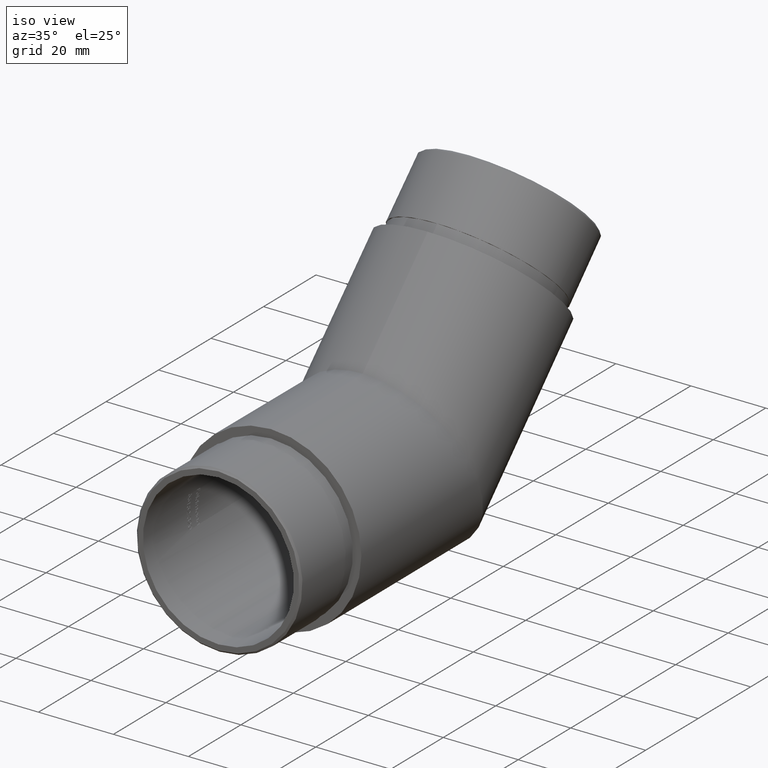
[diagram: clean part render]
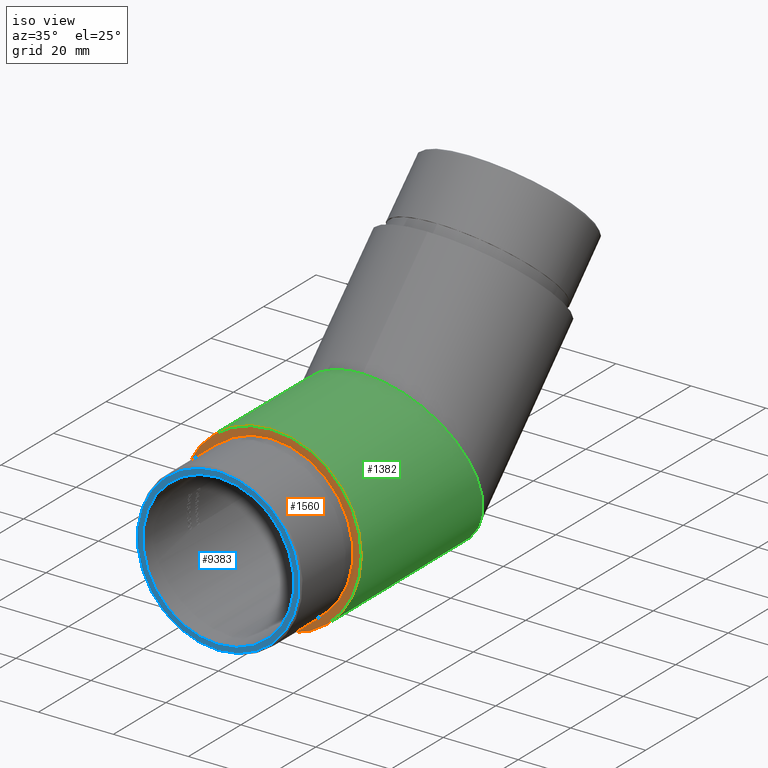
[diagram: same view with three faces highlighted in distinct colors, each labeled with its STEP entity id]
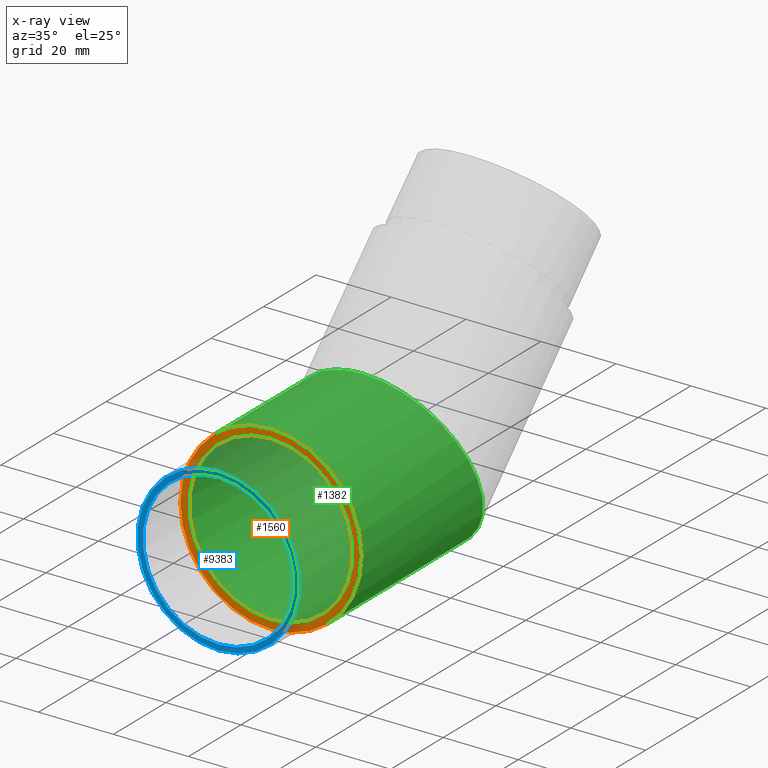
[diagram: x-ray of the same camera — body ghosted, the three highlighted faces saturated]
A machine part, iso view with three faces highlighted in distinct colors.
The next image is the same camera in x-ray (body ghosted, the three faces saturated) — at least one of them is partly hidden behind the body in this view.
Their STEP definitions:

[orange] entity #1560 — the highlighted planar face has unit normal (0, 1, 0).
#5 = CIRCLE ( 'NONE', #11575, 21.89999999999999900 ) ;
#188 = CARTESIAN_POINT ( 'NONE',  ( 0.0000000000000000000, 0.0000000000000000000, 24.15000000000000600 ) ) ;
#397 = DIRECTION ( 'NONE',  ( -0.0000000000000000000, -1.000000000000000000, -0.0000000000000000000 ) ) ;
#774 = FACE_BOUND ( 'NONE', #3221, .T. ) ;
#1229 = ORIENTED_EDGE ( 'NONE', *, *, #11038, .F. ) ;
#1560 = ADVANCED_FACE ( 'NONE', ( #2072, #774 ), #5513, .F. ) ;
#2072 = FACE_OUTER_BOUND ( 'NONE', #7679, .T. ) ;
#3000 = CARTESIAN_POINT ( 'NONE',  ( 0.0000000000000000000, 0.0000000000000000000, 0.0000000000000000000 ) ) ;
#3221 = EDGE_LOOP ( 'NONE', ( #8101 ) ) ;
#4037 = CIRCLE ( 'NONE', #6209, 24.15000000000000600 ) ;
#4688 = CARTESIAN_POINT ( 'NONE',  ( 0.0000000000000000000, 0.0000000000000000000, 21.89999999999999900 ) ) ;
#4734 = CARTESIAN_POINT ( 'NONE',  ( 0.0000000000000000000, 0.0000000000000000000, 0.0000000000000000000 ) ) ;
#4825 = DIRECTION ( 'NONE',  ( 0.0000000000000000000, -0.0000000000000000000, 1.000000000000000000 ) ) ;
#5024 = VERTEX_POINT ( 'NONE', #188 ) ;
#5131 = EDGE_CURVE ( 'NONE', #6313, #6313, #5, .T. ) ;
#5513 = PLANE ( 'NONE',  #5643 ) ;
#5643 = AXIS2_PLACEMENT_3D ( 'NONE', #4734, #7564, #4825 ) ;
#6209 = AXIS2_PLACEMENT_3D ( 'NONE', #3000, #10407, #10358 ) ;
#6313 = VERTEX_POINT ( 'NONE', #4688 ) ;
#7564 = DIRECTION ( 'NONE',  ( 0.0000000000000000000, 1.000000000000000000, 0.0000000000000000000 ) ) ;
#7679 = EDGE_LOOP ( 'NONE', ( #1229 ) ) ;
#8101 = ORIENTED_EDGE ( 'NONE', *, *, #5131, .F. ) ;
#10353 = CARTESIAN_POINT ( 'NONE',  ( 0.0000000000000000000, 0.0000000000000000000, 0.0000000000000000000 ) ) ;
#10358 = DIRECTION ( 'NONE',  ( 0.0000000000000000000, 0.0000000000000000000, 1.000000000000000000 ) ) ;
#10407 = DIRECTION ( 'NONE',  ( 0.0000000000000000000, 1.000000000000000000, 0.0000000000000000000 ) ) ;
#11038 = EDGE_CURVE ( 'NONE', #5024, #5024, #4037, .T. ) ;
#11288 = DIRECTION ( 'NONE',  ( 0.0000000000000000000, 0.0000000000000000000, 1.000000000000000000 ) ) ;
#11575 = AXIS2_PLACEMENT_3D ( 'NONE', #10353, #397, #11288 ) ;

[blue] entity #9383 — the highlighted planar face has unit normal (0, -1, 0).
#102 = PLANE ( 'NONE',  #2853 ) ;
#204 = AXIS2_PLACEMENT_3D ( 'NONE', #7573, #9264, #10148 ) ;
#1768 = FACE_OUTER_BOUND ( 'NONE', #11256, .T. ) ;
#1915 = DIRECTION ( 'NONE',  ( 0.0000000000000000000, -0.0000000000000000000, -1.000000000000000000 ) ) ;
#1965 = DIRECTION ( 'NONE',  ( 0.0000000000000000000, -1.000000000000000000, 0.0000000000000000000 ) ) ;
#2022 = VERTEX_POINT ( 'NONE', #3709 ) ;
#2104 = ORIENTED_EDGE ( 'NONE', *, *, #7414, .F. ) ;
#2204 = DIRECTION ( 'NONE',  ( 0.0000000000000000000, -1.000000000000000000, 0.0000000000000000000 ) ) ;
#2477 = FACE_BOUND ( 'NONE', #7111, .T. ) ;
#2853 = AXIS2_PLACEMENT_3D ( 'NONE', #2922, #1965, #1915 ) ;
#2922 = CARTESIAN_POINT ( 'NONE',  ( 0.0000000000000000000, -20.00000000000000000, 0.0000000000000000000 ) ) ;
#3319 = VERTEX_POINT ( 'NONE', #4757 ) ;
#3524 = ORIENTED_EDGE ( 'NONE', *, *, #8607, .T. ) ;
#3709 = CARTESIAN_POINT ( 'NONE',  ( 0.0000000000000000000, -20.00000000000000000, -20.15000000000000200 ) ) ;
#4757 = CARTESIAN_POINT ( 'NONE',  ( 0.0000000000000000000, -20.00000000000000000, -21.59999999999996600 ) ) ;
#7111 = EDGE_LOOP ( 'NONE', ( #2104 ) ) ;
#7362 = AXIS2_PLACEMENT_3D ( 'NONE', #11344, #2204, #10552 ) ;
#7414 = EDGE_CURVE ( 'NONE', #2022, #2022, #9980, .T. ) ;
#7573 = CARTESIAN_POINT ( 'NONE',  ( 0.0000000000000000000, -20.00000000000000000, 0.0000000000000000000 ) ) ;
#8607 = EDGE_CURVE ( 'NONE', #3319, #3319, #10101, .T. ) ;
#9264 = DIRECTION ( 'NONE',  ( 0.0000000000000000000, -1.000000000000000000, 0.0000000000000000000 ) ) ;
#9383 = ADVANCED_FACE ( 'NONE', ( #1768, #2477 ), #102, .T. ) ;
#9980 = CIRCLE ( 'NONE', #204, 20.15000000000000200 ) ;
#10101 = CIRCLE ( 'NONE', #7362, 21.59999999999996600 ) ;
#10148 = DIRECTION ( 'NONE',  ( 0.0000000000000000000, 0.0000000000000000000, -1.000000000000000000 ) ) ;
#10552 = DIRECTION ( 'NONE',  ( 0.0000000000000000000, 0.0000000000000000000, -1.000000000000000000 ) ) ;
#11256 = EDGE_LOOP ( 'NONE', ( #3524 ) ) ;
#11344 = CARTESIAN_POINT ( 'NONE',  ( 0.0000000000000000000, -20.00000000000000000, 0.0000000000000000000 ) ) ;

[green] entity #1382 — the highlighted cylindrical surface (bore or boss wall) has radius 24.15 mm, axis along (-0, -1, -0).
#111 = AXIS2_PLACEMENT_3D ( 'NONE', #8132, #3603, #9042 ) ;
#188 = CARTESIAN_POINT ( 'NONE',  ( 0.0000000000000000000, 0.0000000000000000000, 24.15000000000000600 ) ) ;
#471 = FACE_OUTER_BOUND ( 'NONE', #10539, .T. ) ;
#1382 = ADVANCED_FACE ( 'NONE', ( #471, #3518 ), #10967, .T. ) ;
#1981 = CARTESIAN_POINT ( 'NONE',  ( 0.0000000000000000000, 34.99348493737945600, 24.15000000000000600 ) ) ;
#3000 = CARTESIAN_POINT ( 'NONE',  ( 0.0000000000000000000, 0.0000000000000000000, 0.0000000000000000000 ) ) ;
#3501 = ORIENTED_EDGE ( 'NONE', *, *, #5411, .F. ) ;
#3518 = FACE_OUTER_BOUND ( 'NONE', #9106, .T. ) ;
#3603 = DIRECTION ( 'NONE',  ( -0.0000000000000000000, -1.000000000000000000, -0.0000000000000000000 ) ) ;
#4032 = CARTESIAN_POINT ( 'NONE',  ( 48.30000000000001100, 55.00000000000001400, -24.14999999999999900 ) ) ;
#4037 = CIRCLE ( 'NONE', #6209, 24.15000000000000600 ) ;
#4992 = CARTESIAN_POINT ( 'NONE',  ( 0.0000000000000000000, 34.99348493737945600, 24.15000000000000600 ) ) ;
#5024 = VERTEX_POINT ( 'NONE', #188 ) ;
#5411 = EDGE_CURVE ( 'NONE', #5739, #5739, #5693, .T. ) ;
#5693 =( BOUNDED_CURVE ( )  B_SPLINE_CURVE ( 3, ( #11411, #8616, #4032, #5759, #5803, #10416, #4992 ),
 .UNSPECIFIED., .T., .F. ) 
 B_SPLINE_CURVE_WITH_KNOTS ( ( 4, 3, 4 ),
 ( 0.0000000000000000000, 3.141592653589793100, 6.283185307179586200 ),
 .UNSPECIFIED. ) 
 CURVE ( )  GEOMETRIC_REPRESENTATION_ITEM ( )  RATIONAL_B_SPLINE_CURVE ( ( 1.000000000000000000, 0.3333333333333333700, 0.3333333333333333700, 1.000000000000000000, 0.3333333333333333700, 0.3333333333333333700, 1.000000000000000000 ) ) 
 REPRESENTATION_ITEM ( '' )  );
#5739 = VERTEX_POINT ( 'NONE', #1981 ) ;
#5759 = CARTESIAN_POINT ( 'NONE',  ( 2.957522019940858700E-015, 55.00000000000000700, -24.15000000000000600 ) ) ;
#5803 = CARTESIAN_POINT ( 'NONE',  ( -48.30000000000001100, 55.00000000000001400, -24.15000000000001600 ) ) ;
#6209 = AXIS2_PLACEMENT_3D ( 'NONE', #3000, #10407, #10358 ) ;
#8132 = CARTESIAN_POINT ( 'NONE',  ( 0.0000000000000000000, 113.3032575313102400, 0.0000000000000000000 ) ) ;
#8616 = CARTESIAN_POINT ( 'NONE',  ( 48.30000000000001100, 34.99348493737945600, 24.15000000000000900 ) ) ;
#9042 = DIRECTION ( 'NONE',  ( 0.0000000000000000000, 0.0000000000000000000, -1.000000000000000000 ) ) ;
#9106 = EDGE_LOOP ( 'NONE', ( #3501 ) ) ;
#10358 = DIRECTION ( 'NONE',  ( 0.0000000000000000000, 0.0000000000000000000, 1.000000000000000000 ) ) ;
#10407 = DIRECTION ( 'NONE',  ( 0.0000000000000000000, 1.000000000000000000, 0.0000000000000000000 ) ) ;
#10416 = CARTESIAN_POINT ( 'NONE',  ( -48.30000000000001100, 34.99348493737945600, 24.15000000000000900 ) ) ;
#10539 = EDGE_LOOP ( 'NONE', ( #10998 ) ) ;
#10967 = CYLINDRICAL_SURFACE ( 'NONE', #111, 24.15000000000000600 ) ;
#10998 = ORIENTED_EDGE ( 'NONE', *, *, #11038, .T. ) ;
#11038 = EDGE_CURVE ( 'NONE', #5024, #5024, #4037, .T. ) ;
#11411 = CARTESIAN_POINT ( 'NONE',  ( 0.0000000000000000000, 34.99348493737945600, 24.15000000000000600 ) ) ;